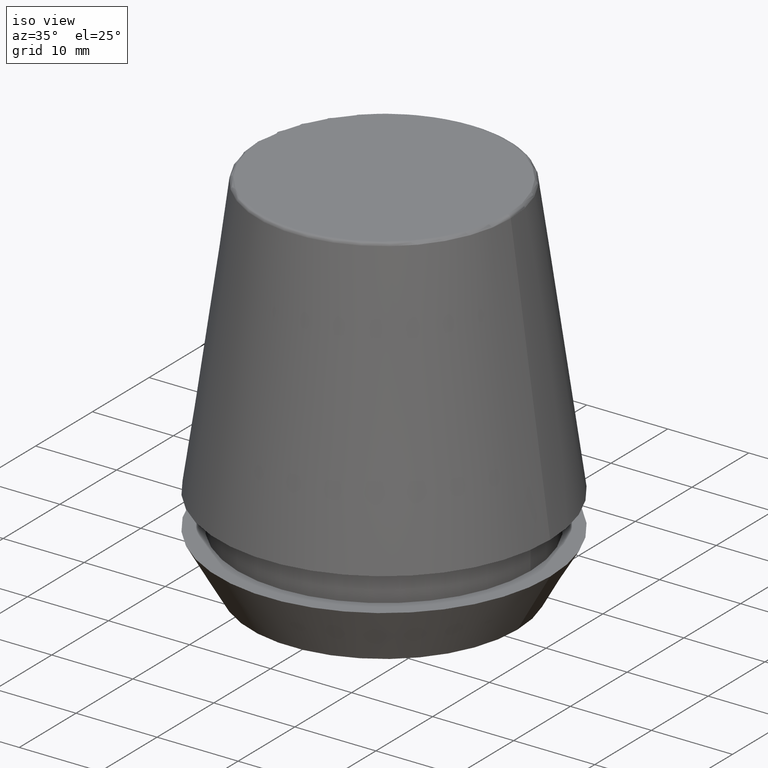
[diagram: clean part render]
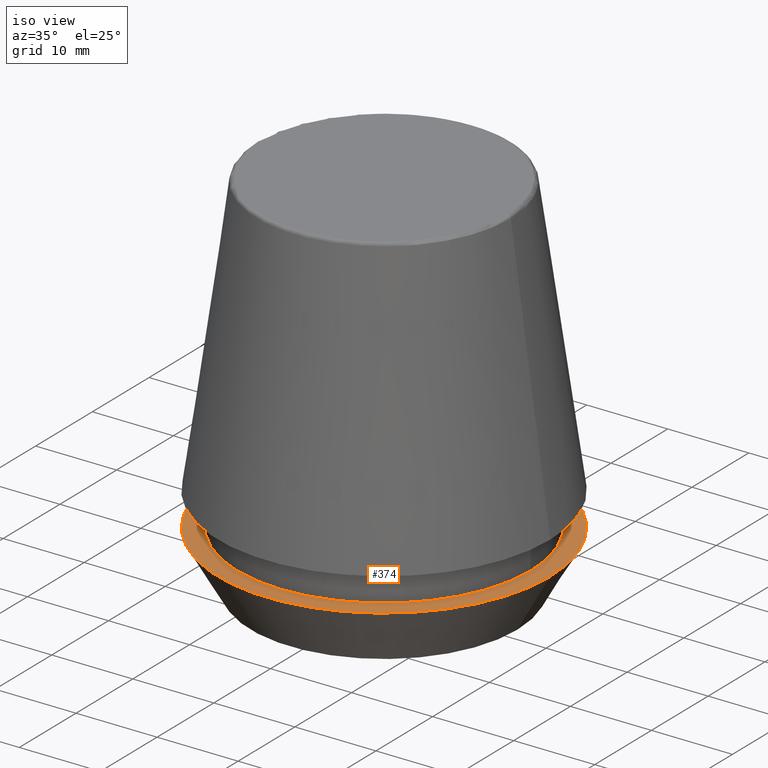
[diagram: same view with one face highlighted and labeled with its STEP entity id]
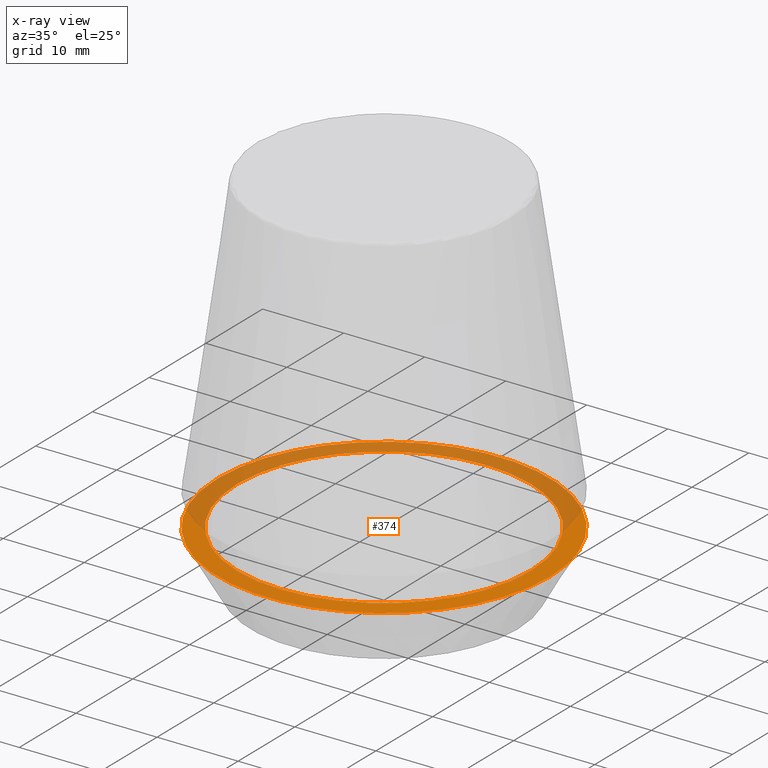
[diagram: x-ray of the same camera — body ghosted, the highlighted face saturated]
A machine part, iso view. The second image highlights one B-rep face of the part: STEP entity #374.
The next image is the same camera in x-ray: the body ghosted, the highlighted face saturated — about 47% of this face is hidden behind the body in this view.
In plain terms, the highlighted planar face has unit normal (0, 0, -1).
Its self-contained STEP definition (entity closure, byte-faithful):
#20 = CARTESIAN_POINT ( 'NONE',  ( 0.0000000000000000000, 0.0000000000000000000, 7.000000000000006200 ) ) ;
#24 = AXIS2_PLACEMENT_3D ( 'NONE', #26, #101, #268 ) ;
#26 = CARTESIAN_POINT ( 'NONE',  ( 0.0000000000000000000, 0.0000000000000000000, 6.999999999999999100 ) ) ;
#36 = CARTESIAN_POINT ( 'NONE',  ( 0.0000000000000000000, 0.0000000000000000000, 7.000000000000006200 ) ) ;
#53 = VERTEX_POINT ( 'NONE', #382 ) ;
#66 = CARTESIAN_POINT ( 'NONE',  ( -20.50000000000000000, 2.510525938252074100E-015, 7.000000000000006200 ) ) ;
#79 = EDGE_LOOP ( 'NONE', ( #158, #331 ) ) ;
#101 = DIRECTION ( 'NONE',  ( -0.0000000000000000000, -0.0000000000000000000, 1.000000000000000000 ) ) ;
#105 = EDGE_LOOP ( 'NONE', ( #109, #129 ) ) ;
#109 = ORIENTED_EDGE ( 'NONE', *, *, #326, .F. ) ;
#113 = DIRECTION ( 'NONE',  ( 0.0000000000000000000, 0.0000000000000000000, -1.000000000000000000 ) ) ;
#114 = AXIS2_PLACEMENT_3D ( 'NONE', #136, #113, #282 ) ;
#115 = DIRECTION ( 'NONE',  ( 1.000000000000000000, 0.0000000000000000000, 0.0000000000000000000 ) ) ;
#129 = ORIENTED_EDGE ( 'NONE', *, *, #191, .F. ) ;
#135 = AXIS2_PLACEMENT_3D ( 'NONE', #20, #171, #373 ) ;
#136 = CARTESIAN_POINT ( 'NONE',  ( 0.0000000000000000000, 20.50000000000000000, 7.000000000000002700 ) ) ;
#137 = CARTESIAN_POINT ( 'NONE',  ( 0.0000000000000000000, 0.0000000000000000000, 6.999999999999999100 ) ) ;
#141 = CARTESIAN_POINT ( 'NONE',  ( -18.10000000000000100, 2.216610706456709600E-015, 6.999999999999999100 ) ) ;
#151 = VERTEX_POINT ( 'NONE', #155 ) ;
#155 = CARTESIAN_POINT ( 'NONE',  ( 20.50000000000000000, 0.0000000000000000000, 7.000000000000006200 ) ) ;
#158 = ORIENTED_EDGE ( 'NONE', *, *, #159, .T. ) ;
#159 = EDGE_CURVE ( 'NONE', #151, #162, #349, .T. ) ;
#162 = VERTEX_POINT ( 'NONE', #66 ) ;
#171 = DIRECTION ( 'NONE',  ( -0.0000000000000000000, -0.0000000000000000000, 1.000000000000000000 ) ) ;
#173 = AXIS2_PLACEMENT_3D ( 'NONE', #36, #262, #218 ) ;
#191 = EDGE_CURVE ( 'NONE', #199, #53, #333, .T. ) ;
#199 = VERTEX_POINT ( 'NONE', #141 ) ;
#216 = AXIS2_PLACEMENT_3D ( 'NONE', #137, #321, #115 ) ;
#218 = DIRECTION ( 'NONE',  ( 1.000000000000000000, 0.0000000000000000000, 0.0000000000000000000 ) ) ;
#232 = EDGE_CURVE ( 'NONE', #162, #151, #341, .T. ) ;
#262 = DIRECTION ( 'NONE',  ( -0.0000000000000000000, -0.0000000000000000000, 1.000000000000000000 ) ) ;
#268 = DIRECTION ( 'NONE',  ( 1.000000000000000000, 0.0000000000000000000, 0.0000000000000000000 ) ) ;
#271 = FACE_OUTER_BOUND ( 'NONE', #79, .T. ) ;
#282 = DIRECTION ( 'NONE',  ( -1.000000000000000000, 0.0000000000000000000, -0.0000000000000000000 ) ) ;
#300 = FACE_BOUND ( 'NONE', #105, .T. ) ;
#306 = CIRCLE ( 'NONE', #216, 18.10000000000000100 ) ;
#320 = PLANE ( 'NONE',  #114 ) ;
#321 = DIRECTION ( 'NONE',  ( -0.0000000000000000000, -0.0000000000000000000, 1.000000000000000000 ) ) ;
#326 = EDGE_CURVE ( 'NONE', #53, #199, #306, .T. ) ;
#331 = ORIENTED_EDGE ( 'NONE', *, *, #232, .T. ) ;
#333 = CIRCLE ( 'NONE', #24, 18.10000000000000100 ) ;
#341 = CIRCLE ( 'NONE', #135, 20.50000000000000000 ) ;
#349 = CIRCLE ( 'NONE', #173, 20.50000000000000000 ) ;
#373 = DIRECTION ( 'NONE',  ( 1.000000000000000000, 0.0000000000000000000, 0.0000000000000000000 ) ) ;
#374 = ADVANCED_FACE ( 'NONE', ( #300, #271 ), #320, .F. ) ;
#382 = CARTESIAN_POINT ( 'NONE',  ( 18.10000000000000100, 0.0000000000000000000, 6.999999999999999100 ) ) ;